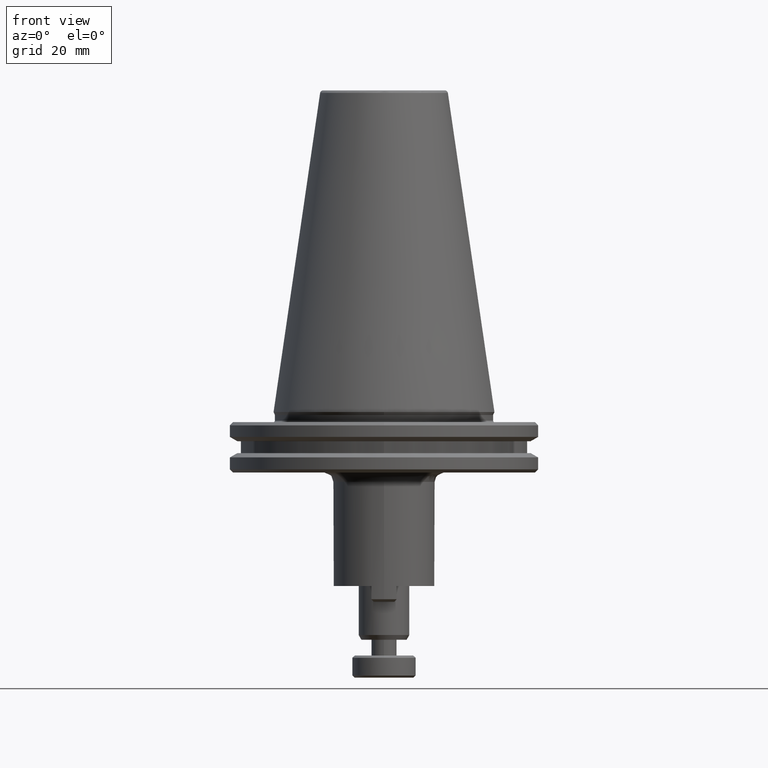
[diagram: clean part render]
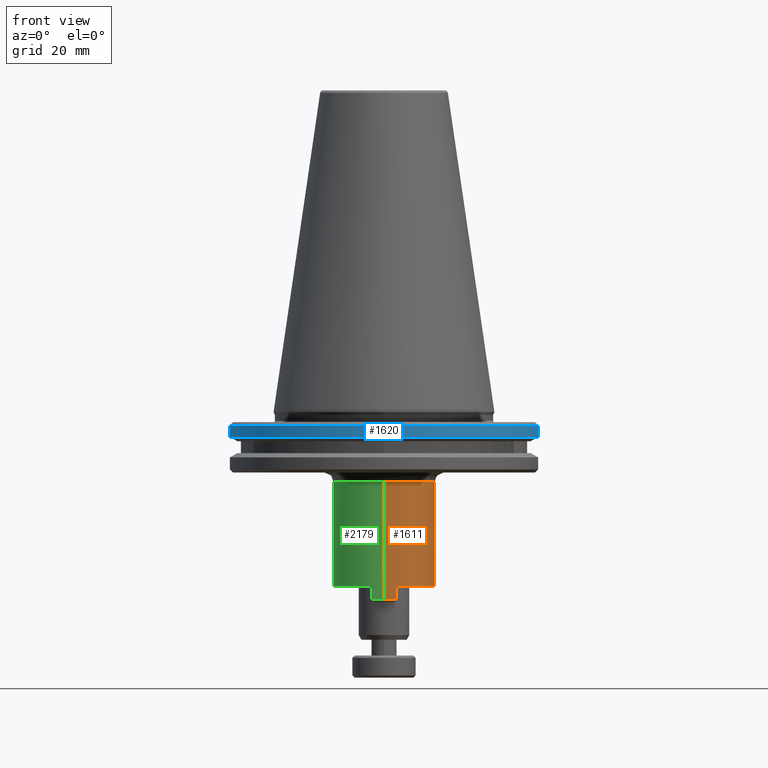
[diagram: same view with three faces highlighted in distinct colors, each labeled with its STEP entity id]
A machine part, front view with three faces highlighted in distinct colors.
Their STEP definitions:

[orange] entity #1611 — the highlighted cylindrical surface (partial cylindrical patch) has radius 16 mm, axis along (0, -0, 1).
#2 = ORIENTED_EDGE ( 'NONE', *, *, #386, .T. ) ;
#51 = VERTEX_POINT ( 'NONE', #1160 ) ;
#57 = AXIS2_PLACEMENT_3D ( 'NONE', #1504, #852, #751 ) ;
#100 = EDGE_CURVE ( 'NONE', #1636, #498, #877, .T. ) ;
#107 = DIRECTION ( 'NONE',  ( 0.0000000000000000000, -2.710505431213761100E-017, 1.000000000000000000 ) ) ;
#118 = ORIENTED_EDGE ( 'NONE', *, *, #828, .T. ) ;
#135 = CARTESIAN_POINT ( 'NONE',  ( 3.999999999914478200, -15.49193338462199200, -59.20000000008552400 ) ) ;
#136 = AXIS2_PLACEMENT_3D ( 'NONE', #617, #611, #598 ) ;
#139 = ORIENTED_EDGE ( 'NONE', *, *, #736, .T. ) ;
#261 = CARTESIAN_POINT ( 'NONE',  ( 3.999999999940187800, -15.49193338484511200, -59.20000000000000300 ) ) ;
#283 = DIRECTION ( 'NONE',  ( 0.0000000000000000000, -2.710505431213761100E-017, 1.000000000000000000 ) ) ;
#286 = DIRECTION ( 'NONE',  ( 0.0000000000000000000, -1.000000000000000000, 0.0000000000000000000 ) ) ;
#289 = CARTESIAN_POINT ( 'NONE',  ( 0.0000000000000000000, -16.00000000000000000, -59.20000000000000300 ) ) ;
#292 = DIRECTION ( 'NONE',  ( 0.0000000000000000000, -2.710505431213761100E-017, 1.000000000000000000 ) ) ;
#293 = DIRECTION ( 'NONE',  ( 0.0000000000000000000, -2.710505431213761100E-017, 1.000000000000000000 ) ) ;
#297 = CARTESIAN_POINT ( 'NONE',  ( 0.0000000000000000000, 8.228460455756012600E-032, -59.20000000000000300 ) ) ;
#304 = DIRECTION ( 'NONE',  ( -0.0000000000000000000, 2.710505431213761100E-017, -1.000000000000000000 ) ) ;
#306 = CARTESIAN_POINT ( 'NONE',  ( 3.999999999979385400, 15.49193338483499000, -59.20000000000000300 ) ) ;
#339 = VERTEX_POINT ( 'NONE', #1681 ) ;
#386 = EDGE_CURVE ( 'NONE', #51, #1645, #2150, .T. ) ;
#388 = CARTESIAN_POINT ( 'NONE',  ( 1.959434878635765100E-015, 16.00000000000000000, -59.20000000000000300 ) ) ;
#443 = CARTESIAN_POINT ( 'NONE',  ( 0.0000000000000000000, -16.00000000000000000, -22.10000000000000900 ) ) ;
#498 = VERTEX_POINT ( 'NONE', #614 ) ;
#536 = VECTOR ( 'NONE', #2137, 1000.000000000000000 ) ;
#554 = EDGE_LOOP ( 'NONE', ( #1428, #1247, #1563, #1623, #1686, #1999, #118, #2, #139 ) ) ;
#576 = LINE ( 'NONE', #388, #536 ) ;
#598 = DIRECTION ( 'NONE',  ( 0.0000000000000000000, -1.000000000000000000, 0.0000000000000000000 ) ) ;
#611 = DIRECTION ( 'NONE',  ( 0.0000000000000000000, -2.710505431213761100E-017, 1.000000000000000000 ) ) ;
#614 = CARTESIAN_POINT ( 'NONE',  ( 15.99999999993886100, 0.0000000000000000000, -22.09999999982727900 ) ) ;
#617 = CARTESIAN_POINT ( 'NONE',  ( 0.0000000000000000000, 1.236306237400216700E-026, -59.20000000045611400 ) ) ;
#655 = LINE ( 'NONE', #261, #1107 ) ;
#662 = AXIS2_PLACEMENT_3D ( 'NONE', #2290, #838, #1618 ) ;
#667 = VERTEX_POINT ( 'NONE', #443 ) ;
#724 = FACE_OUTER_BOUND ( 'NONE', #554, .T. ) ;
#736 = EDGE_CURVE ( 'NONE', #1645, #339, #1848, .T. ) ;
#743 = EDGE_CURVE ( 'NONE', #339, #1917, #1048, .T. ) ;
#751 = DIRECTION ( 'NONE',  ( 0.0000000000000000000, -1.000000000000000000, 0.0000000000000000000 ) ) ;
#764 = CYLINDRICAL_SURFACE ( 'NONE', #1568, 16.00000000000000000 ) ;
#828 = EDGE_CURVE ( 'NONE', #2256, #51, #655, .T. ) ;
#838 = DIRECTION ( 'NONE',  ( 0.0000000000000000000, 1.084202172493490300E-016, -1.000000000000000000 ) ) ;
#852 = DIRECTION ( 'NONE',  ( 0.0000000000000000000, -2.710505431213761100E-017, 1.000000000000000000 ) ) ;
#877 = CIRCLE ( 'NONE', #1363, 15.99999999987772300 ) ;
#956 = CARTESIAN_POINT ( 'NONE',  ( 3.999999999989692200, 15.49193338483232900, -54.99999999919999300 ) ) ;
#970 = CARTESIAN_POINT ( 'NONE',  ( 1.959434878635765100E-015, 16.00000000000000000, -22.09999999965454600 ) ) ;
#1048 = CIRCLE ( 'NONE', #1714, 16.00000000000000000 ) ;
#1107 = VECTOR ( 'NONE', #283, 1000.000000000000000 ) ;
#1160 = CARTESIAN_POINT ( 'NONE',  ( 4.000000000007143600, -15.49193338483358500, -54.99999999960000000 ) ) ;
#1227 = CARTESIAN_POINT ( 'NONE',  ( 1.959434878635765100E-015, 16.00000000000000000, -59.20000000000000300 ) ) ;
#1247 = ORIENTED_EDGE ( 'NONE', *, *, #1598, .T. ) ;
#1293 = VECTOR ( 'NONE', #304, 1000.000000000000000 ) ;
#1330 = CARTESIAN_POINT ( 'NONE',  ( 0.0000000000000000000, 0.0000000000000000000, -22.09999999965455300 ) ) ;
#1363 = AXIS2_PLACEMENT_3D ( 'NONE', #1330, #2045, #1404 ) ;
#1404 = DIRECTION ( 'NONE',  ( 0.0000000000000000000, 1.000000000000000000, 2.168404344987580600E-016 ) ) ;
#1414 = CIRCLE ( 'NONE', #136, 16.00000000000000000 ) ;
#1428 = ORIENTED_EDGE ( 'NONE', *, *, #743, .T. ) ;
#1504 = CARTESIAN_POINT ( 'NONE',  ( 0.0000000000000000000, -1.138412281326620800E-016, -54.99999999919999300 ) ) ;
#1553 = LINE ( 'NONE', #289, #1616 ) ;
#1563 = ORIENTED_EDGE ( 'NONE', *, *, #100, .T. ) ;
#1568 = AXIS2_PLACEMENT_3D ( 'NONE', #1643, #107, #1601 ) ;
#1598 = EDGE_CURVE ( 'NONE', #1917, #1636, #576, .T. ) ;
#1601 = DIRECTION ( 'NONE',  ( 0.0000000000000000000, -1.000000000000000000, 0.0000000000000000000 ) ) ;
#1611 = ADVANCED_FACE ( 'NONE', ( #724 ), #764, .T. ) ;
#1616 = VECTOR ( 'NONE', #292, 1000.000000000000000 ) ;
#1618 = DIRECTION ( 'NONE',  ( 0.0000000000000000000, 1.000000000000000000, 0.0000000000000000000 ) ) ;
#1623 = ORIENTED_EDGE ( 'NONE', *, *, #2510, .T. ) ;
#1636 = VERTEX_POINT ( 'NONE', #970 ) ;
#1643 = CARTESIAN_POINT ( 'NONE',  ( 0.0000000000000000000, 0.0000000000000000000, -59.20000000000000300 ) ) ;
#1645 = VERTEX_POINT ( 'NONE', #956 ) ;
#1681 = CARTESIAN_POINT ( 'NONE',  ( 3.999999999909324500, 15.49193338462465300, -59.19999999974500300 ) ) ;
#1686 = ORIENTED_EDGE ( 'NONE', *, *, #2197, .F. ) ;
#1714 = AXIS2_PLACEMENT_3D ( 'NONE', #297, #293, #286 ) ;
#1848 = LINE ( 'NONE', #306, #1293 ) ;
#1917 = VERTEX_POINT ( 'NONE', #1227 ) ;
#1999 = ORIENTED_EDGE ( 'NONE', *, *, #2057, .T. ) ;
#2045 = DIRECTION ( 'NONE',  ( 0.0000000000000000000, 3.252606517480471500E-016, -1.000000000000000000 ) ) ;
#2057 = EDGE_CURVE ( 'NONE', #2331, #2256, #1414, .T. ) ;
#2137 = DIRECTION ( 'NONE',  ( 0.0000000000000000000, -2.710505431213761100E-017, 1.000000000000000000 ) ) ;
#2150 = CIRCLE ( 'NONE', #57, 16.00000000000000000 ) ;
#2167 = CIRCLE ( 'NONE', #662, 15.99999999987771900 ) ;
#2197 = EDGE_CURVE ( 'NONE', #2331, #667, #1553, .T. ) ;
#2230 = CARTESIAN_POINT ( 'NONE',  ( 0.0000000000000000000, -16.00000000000000000, -59.20000000045611400 ) ) ;
#2256 = VERTEX_POINT ( 'NONE', #135 ) ;
#2290 = CARTESIAN_POINT ( 'NONE',  ( 0.0000000000000000000, 0.0000000000000000000, -22.10000000000000900 ) ) ;
#2331 = VERTEX_POINT ( 'NONE', #2230 ) ;
#2510 = EDGE_CURVE ( 'NONE', #498, #667, #2167, .T. ) ;

[blue] entity #1620 — the highlighted cylindrical surface (partial cylindrical patch) has radius 48.75 mm, axis along (0, -0, 1).
#151 = LINE ( 'NONE', #932, #471 ) ;
#178 = EDGE_CURVE ( 'NONE', #1621, #1720, #2098, .T. ) ;
#319 = VECTOR ( 'NONE', #1360, 1000.000000000000000 ) ;
#434 = DIRECTION ( 'NONE',  ( 1.000000000000000000, 0.0000000000000000000, 0.0000000000000000000 ) ) ;
#441 = DIRECTION ( 'NONE',  ( -0.0000000000000000000, -0.0000000000000000000, 1.000000000000000000 ) ) ;
#471 = VECTOR ( 'NONE', #1854, 1000.000000000000000 ) ;
#520 = VERTEX_POINT ( 'NONE', #669 ) ;
#622 = FACE_OUTER_BOUND ( 'NONE', #2176, .T. ) ;
#669 = CARTESIAN_POINT ( 'NONE',  ( -48.74999999976803600, 5.970153145824554900E-015, -7.852404736133931500 ) ) ;
#795 = CYLINDRICAL_SURFACE ( 'NONE', #1131, 48.75000000000000000 ) ;
#932 = CARTESIAN_POINT ( 'NONE',  ( -48.75000000000000000, 5.970153145843347100E-015, -7.852404735999999600 ) ) ;
#989 = AXIS2_PLACEMENT_3D ( 'NONE', #1648, #1994, #2258 ) ;
#1121 = EDGE_CURVE ( 'NONE', #1857, #1720, #2269, .T. ) ;
#1131 = AXIS2_PLACEMENT_3D ( 'NONE', #2384, #2279, #434 ) ;
#1155 = DIRECTION ( 'NONE',  ( -0.0000000000000000000, -0.0000000000000000000, 1.000000000000000000 ) ) ;
#1210 = CARTESIAN_POINT ( 'NONE',  ( -48.74999999975155200, 5.970153145828132400E-015, -4.200000000289097800 ) ) ;
#1211 = ORIENTED_EDGE ( 'NONE', *, *, #1121, .F. ) ;
#1252 = ORIENTED_EDGE ( 'NONE', *, *, #178, .T. ) ;
#1299 = DIRECTION ( 'NONE',  ( 1.000000000000000000, 0.0000000000000000000, 0.0000000000000000000 ) ) ;
#1358 = AXIS2_PLACEMENT_3D ( 'NONE', #2101, #441, #2316 ) ;
#1360 = DIRECTION ( 'NONE',  ( 0.0000000000000000000, -0.0000000000000000000, 1.000000000000000000 ) ) ;
#1405 = VERTEX_POINT ( 'NONE', #1210 ) ;
#1520 = EDGE_CURVE ( 'NONE', #520, #1405, #151, .T. ) ;
#1620 = ADVANCED_FACE ( 'NONE', ( #622 ), #795, .T. ) ;
#1621 = VERTEX_POINT ( 'NONE', #2102 ) ;
#1648 = CARTESIAN_POINT ( 'NONE',  ( 0.0000000000000000000, 0.0000000000000000000, -7.852404736133931500 ) ) ;
#1661 = CARTESIAN_POINT ( 'NONE',  ( 0.0000000000000000000, 0.0000000000000000000, -4.200000000289097800 ) ) ;
#1720 = VERTEX_POINT ( 'NONE', #2011 ) ;
#1761 = AXIS2_PLACEMENT_3D ( 'NONE', #1661, #1155, #1299 ) ;
#1838 = CIRCLE ( 'NONE', #1358, 48.74999999975155200 ) ;
#1841 = CIRCLE ( 'NONE', #989, 48.74999999976803600 ) ;
#1854 = DIRECTION ( 'NONE',  ( 0.0000000000000000000, -0.0000000000000000000, 1.000000000000000000 ) ) ;
#1857 = VERTEX_POINT ( 'NONE', #2423 ) ;
#1994 = DIRECTION ( 'NONE',  ( -0.0000000000000000000, 0.0000000000000000000, -1.000000000000000000 ) ) ;
#2011 = CARTESIAN_POINT ( 'NONE',  ( 48.74999999975155200, 0.0000000000000000000, -4.200000000289097800 ) ) ;
#2098 = LINE ( 'NONE', #2152, #319 ) ;
#2101 = CARTESIAN_POINT ( 'NONE',  ( 0.0000000000000000000, 0.0000000000000000000, -4.200000000289097800 ) ) ;
#2102 = CARTESIAN_POINT ( 'NONE',  ( 48.74999999976803600, 0.0000000000000000000, -7.852404736133929800 ) ) ;
#2152 = CARTESIAN_POINT ( 'NONE',  ( 48.75000000000000000, 0.0000000000000000000, -7.852404735999999600 ) ) ;
#2164 = ORIENTED_EDGE ( 'NONE', *, *, #1520, .F. ) ;
#2176 = EDGE_LOOP ( 'NONE', ( #2164, #2264, #1252, #1211, #2187 ) ) ;
#2187 = ORIENTED_EDGE ( 'NONE', *, *, #2387, .F. ) ;
#2258 = DIRECTION ( 'NONE',  ( 1.000000000000000000, 0.0000000000000000000, 3.558407130225766900E-017 ) ) ;
#2264 = ORIENTED_EDGE ( 'NONE', *, *, #2381, .F. ) ;
#2269 = CIRCLE ( 'NONE', #1761, 48.74999999975155200 ) ;
#2279 = DIRECTION ( 'NONE',  ( 0.0000000000000000000, -0.0000000000000000000, 1.000000000000000000 ) ) ;
#2316 = DIRECTION ( 'NONE',  ( 1.000000000000000000, 0.0000000000000000000, 0.0000000000000000000 ) ) ;
#2381 = EDGE_CURVE ( 'NONE', #1621, #520, #1841, .T. ) ;
#2384 = CARTESIAN_POINT ( 'NONE',  ( 0.0000000000000000000, 0.0000000000000000000, -7.852404735999999600 ) ) ;
#2387 = EDGE_CURVE ( 'NONE', #1405, #1857, #1838, .T. ) ;
#2423 = CARTESIAN_POINT ( 'NONE',  ( 5.970153145878752000E-015, -48.75000000028910600, -4.200000000289097800 ) ) ;

[green] entity #2179 — the highlighted cylindrical surface (partial cylindrical patch) has radius 16 mm, axis along (0, -0, 1).
#43 = EDGE_LOOP ( 'NONE', ( #721, #2080, #1371, #856, #1599, #1188, #1487, #2318, #2383 ) ) ;
#132 = DIRECTION ( 'NONE',  ( 0.0000000000000000000, 3.252606517480471500E-016, -1.000000000000000000 ) ) ;
#137 = CARTESIAN_POINT ( 'NONE',  ( 0.0000000000000000000, 0.0000000000000000000, -22.09999999965455300 ) ) ;
#289 = CARTESIAN_POINT ( 'NONE',  ( 0.0000000000000000000, -16.00000000000000000, -59.20000000000000300 ) ) ;
#292 = DIRECTION ( 'NONE',  ( 0.0000000000000000000, -2.710505431213761100E-017, 1.000000000000000000 ) ) ;
#302 = EDGE_CURVE ( 'NONE', #649, #1654, #908, .T. ) ;
#334 = DIRECTION ( 'NONE',  ( 0.0000000000000000000, -1.000000000000000000, 0.0000000000000000000 ) ) ;
#348 = CARTESIAN_POINT ( 'NONE',  ( 0.0000000000000000000, 0.0000000000000000000, -59.20000000000000300 ) ) ;
#388 = CARTESIAN_POINT ( 'NONE',  ( 1.959434878635765100E-015, 16.00000000000000000, -59.20000000000000300 ) ) ;
#391 = DIRECTION ( 'NONE',  ( 0.0000000000000000000, -2.710505431213761100E-017, 1.000000000000000000 ) ) ;
#443 = CARTESIAN_POINT ( 'NONE',  ( 0.0000000000000000000, -16.00000000000000000, -22.10000000000000900 ) ) ;
#464 = CARTESIAN_POINT ( 'NONE',  ( -4.000000000122046400, 15.49193338476664300, -59.20000000068103700 ) ) ;
#481 = DIRECTION ( 'NONE',  ( 0.0000000000000000000, -2.710505431213761100E-017, 1.000000000000000000 ) ) ;
#497 = CARTESIAN_POINT ( 'NONE',  ( -4.000000000488185500, 15.49193338470362000, -59.20000000000000300 ) ) ;
#501 = CARTESIAN_POINT ( 'NONE',  ( -4.000000000305115900, 15.49193338473513200, -54.99999999960000000 ) ) ;
#536 = VECTOR ( 'NONE', #2137, 1000.000000000000000 ) ;
#576 = LINE ( 'NONE', #388, #536 ) ;
#579 = CIRCLE ( 'NONE', #1524, 15.99999999987772300 ) ;
#625 = CARTESIAN_POINT ( 'NONE',  ( 0.0000000000000000000, 0.0000000000000000000, -22.10000000000000900 ) ) ;
#626 = EDGE_CURVE ( 'NONE', #2084, #649, #1395, .T. ) ;
#649 = VERTEX_POINT ( 'NONE', #501 ) ;
#660 = DIRECTION ( 'NONE',  ( 0.0000000000000000000, -2.710505431213761100E-017, 1.000000000000000000 ) ) ;
#667 = VERTEX_POINT ( 'NONE', #443 ) ;
#721 = ORIENTED_EDGE ( 'NONE', *, *, #1598, .F. ) ;
#740 = DIRECTION ( 'NONE',  ( -0.0000000000000000000, 2.710505431213761100E-017, -1.000000000000000000 ) ) ;
#803 = DIRECTION ( 'NONE',  ( 0.0000000000000000000, 1.084202172493490300E-016, -1.000000000000000000 ) ) ;
#848 = CARTESIAN_POINT ( 'NONE',  ( -3.999999999979394300, -15.49193338483498800, -59.20000000000000300 ) ) ;
#856 = ORIENTED_EDGE ( 'NONE', *, *, #302, .T. ) ;
#887 = CIRCLE ( 'NONE', #2483, 15.99999999987771900 ) ;
#908 = CIRCLE ( 'NONE', #1853, 16.00000000000000000 ) ;
#968 = DIRECTION ( 'NONE',  ( 0.0000000000000000000, -2.710505431213761100E-017, 1.000000000000000000 ) ) ;
#970 = CARTESIAN_POINT ( 'NONE',  ( 1.959434878635765100E-015, 16.00000000000000000, -22.09999999965454600 ) ) ;
#1053 = CIRCLE ( 'NONE', #2298, 16.00000000000000000 ) ;
#1056 = CARTESIAN_POINT ( 'NONE',  ( 0.0000000000000000000, -1.138412281326620800E-016, -54.99999999919999300 ) ) ;
#1154 = CARTESIAN_POINT ( 'NONE',  ( -15.99999999990828800, -1.230620203816620500E-009, -22.09999999974090900 ) ) ;
#1188 = ORIENTED_EDGE ( 'NONE', *, *, #1842, .T. ) ;
#1191 = AXIS2_PLACEMENT_3D ( 'NONE', #1693, #660, #1640 ) ;
#1227 = CARTESIAN_POINT ( 'NONE',  ( 1.959434878635765100E-015, 16.00000000000000000, -59.20000000000000300 ) ) ;
#1289 = VERTEX_POINT ( 'NONE', #1154 ) ;
#1315 = EDGE_CURVE ( 'NONE', #1917, #2084, #1726, .T. ) ;
#1335 = LINE ( 'NONE', #848, #1424 ) ;
#1371 = ORIENTED_EDGE ( 'NONE', *, *, #626, .T. ) ;
#1382 = VECTOR ( 'NONE', #481, 1000.000000000000000 ) ;
#1395 = LINE ( 'NONE', #497, #1382 ) ;
#1424 = VECTOR ( 'NONE', #740, 1000.000000000000000 ) ;
#1487 = ORIENTED_EDGE ( 'NONE', *, *, #2197, .T. ) ;
#1524 = AXIS2_PLACEMENT_3D ( 'NONE', #137, #132, #1851 ) ;
#1551 = CARTESIAN_POINT ( 'NONE',  ( -3.999999999994849000, -15.49193338483232900, -55.00000000085000100 ) ) ;
#1553 = LINE ( 'NONE', #289, #1616 ) ;
#1574 = EDGE_CURVE ( 'NONE', #1289, #1636, #579, .T. ) ;
#1581 = FACE_OUTER_BOUND ( 'NONE', #43, .T. ) ;
#1598 = EDGE_CURVE ( 'NONE', #1917, #1636, #576, .T. ) ;
#1599 = ORIENTED_EDGE ( 'NONE', *, *, #2025, .T. ) ;
#1616 = VECTOR ( 'NONE', #292, 1000.000000000000000 ) ;
#1634 = AXIS2_PLACEMENT_3D ( 'NONE', #348, #391, #334 ) ;
#1636 = VERTEX_POINT ( 'NONE', #970 ) ;
#1640 = DIRECTION ( 'NONE',  ( 0.0000000000000000000, -1.000000000000000000, 0.0000000000000000000 ) ) ;
#1654 = VERTEX_POINT ( 'NONE', #1551 ) ;
#1693 = CARTESIAN_POINT ( 'NONE',  ( 0.0000000000000000000, 8.228460455756012600E-032, -59.20000000000000300 ) ) ;
#1726 = CIRCLE ( 'NONE', #1191, 16.00000000000000000 ) ;
#1754 = EDGE_CURVE ( 'NONE', #667, #1289, #887, .T. ) ;
#1779 = DIRECTION ( 'NONE',  ( 0.0000000000000000000, -1.000000000000000000, 0.0000000000000000000 ) ) ;
#1842 = EDGE_CURVE ( 'NONE', #2335, #2331, #1053, .T. ) ;
#1851 = DIRECTION ( 'NONE',  ( 0.0000000000000000000, 1.000000000000000000, 2.168404344987580600E-016 ) ) ;
#1853 = AXIS2_PLACEMENT_3D ( 'NONE', #1056, #968, #1779 ) ;
#1917 = VERTEX_POINT ( 'NONE', #1227 ) ;
#1979 = CYLINDRICAL_SURFACE ( 'NONE', #1634, 16.00000000000000000 ) ;
#2025 = EDGE_CURVE ( 'NONE', #1654, #2335, #1335, .T. ) ;
#2080 = ORIENTED_EDGE ( 'NONE', *, *, #1315, .T. ) ;
#2084 = VERTEX_POINT ( 'NONE', #464 ) ;
#2132 = CARTESIAN_POINT ( 'NONE',  ( -3.999999999926446800, -15.49193338469094900, -59.20000000038205500 ) ) ;
#2137 = DIRECTION ( 'NONE',  ( 0.0000000000000000000, -2.710505431213761100E-017, 1.000000000000000000 ) ) ;
#2179 = ADVANCED_FACE ( 'NONE', ( #1581 ), #1979, .T. ) ;
#2197 = EDGE_CURVE ( 'NONE', #2331, #667, #1553, .T. ) ;
#2230 = CARTESIAN_POINT ( 'NONE',  ( 0.0000000000000000000, -16.00000000000000000, -59.20000000045611400 ) ) ;
#2298 = AXIS2_PLACEMENT_3D ( 'NONE', #2354, #2343, #2326 ) ;
#2318 = ORIENTED_EDGE ( 'NONE', *, *, #1754, .T. ) ;
#2326 = DIRECTION ( 'NONE',  ( 0.0000000000000000000, -1.000000000000000000, 0.0000000000000000000 ) ) ;
#2331 = VERTEX_POINT ( 'NONE', #2230 ) ;
#2335 = VERTEX_POINT ( 'NONE', #2132 ) ;
#2343 = DIRECTION ( 'NONE',  ( 0.0000000000000000000, -2.710505431213761100E-017, 1.000000000000000000 ) ) ;
#2354 = CARTESIAN_POINT ( 'NONE',  ( 0.0000000000000000000, 1.236306237400216700E-026, -59.20000000045611400 ) ) ;
#2383 = ORIENTED_EDGE ( 'NONE', *, *, #1574, .T. ) ;
#2388 = DIRECTION ( 'NONE',  ( 0.0000000000000000000, 1.000000000000000000, 0.0000000000000000000 ) ) ;
#2483 = AXIS2_PLACEMENT_3D ( 'NONE', #625, #803, #2388 ) ;